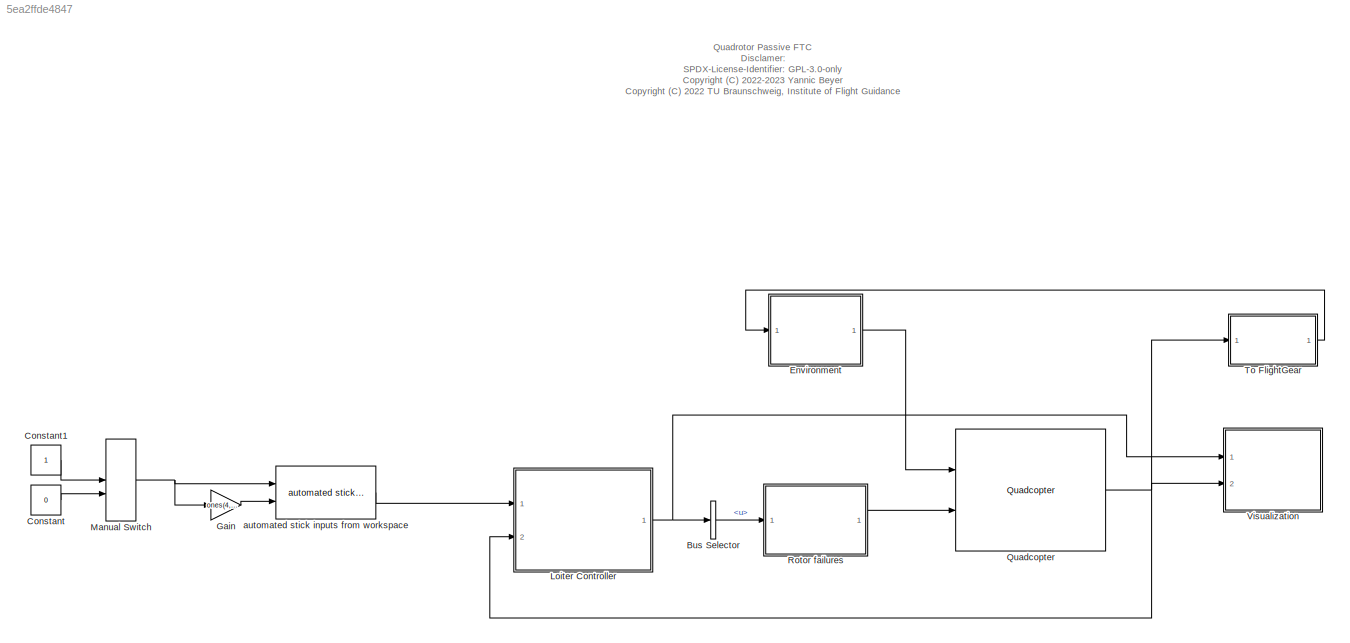
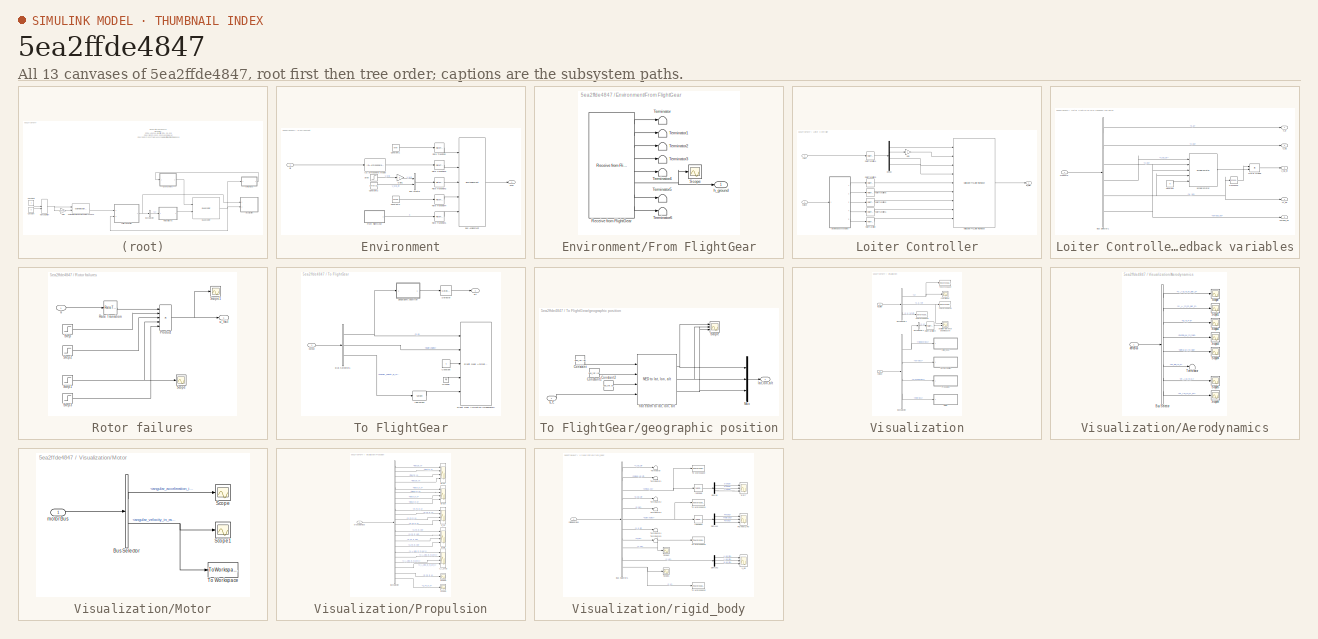
[diagram: thumbnail index - all 13 canvases of the model, root first then tree order]
MODEL slx_5ea2ffde4847
KIND model
CONFIG AbsTol = auto
CONFIG EnableMultiTasking = on
CONFIG FixedStep = sample_time
CONFIG MaxStep = auto
CONFIG MinStep = auto
CONFIG RelTol = 1e-4
CONFIG SampleTimeConstraint = Unconstrained
CONFIG Solver = ode23
CONFIG SolverName = ode23
CONFIG StartTime = 0.0
CONFIG StopTime = 1000
BLOCK [BusSelector] Bus Selector
  OutputAsBus = off
  OutputSignals = inner_loop_indi.u
  Ports = [1, 1]
BLOCK [Constant] Constant
  Value = 0
BLOCK [Constant] Constant1
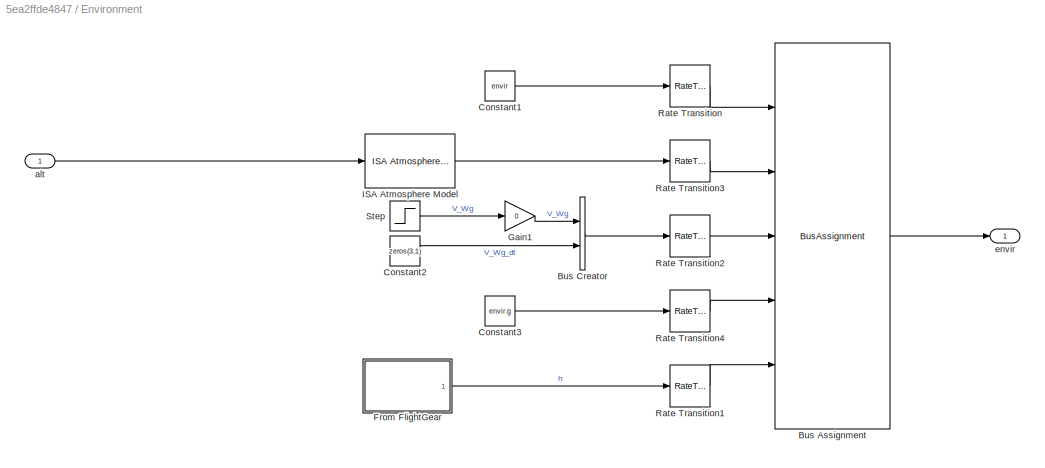
BLOCK [SubSystem] Environment
  Ports = [1, 1]
  RequestExecContextInheritance = off
BLOCK [BusAssignment] Environment/Bus Assignment
  AssignedSignals = atmosphere,wind,g,alt_ground
  Ports = [5, 1]
BLOCK [BusCreator] Environment/Bus Creator
  DisplayOption = bar
  InheritFromInputs = on
  Inputs = 2
  Ports = [2, 1]
BLOCK [Constant] Environment/Constant1
  OutDataTypeStr = Bus: envirBus
  Value = envir
BLOCK [Constant] Environment/Constant2
  Value = zeros(3,1)
BLOCK [Constant] Environment/Constant3
  Value = envir.g
BLOCK [SubSystem] Environment/From FlightGear
  Ports = [0, 1]
  RequestExecContextInheritance = off
BLOCK [Reference] Environment/From FlightGear/Receive from FlightGear  REF=flightgear_visualization_lib/Receive from FlightGear  (lib defined in slx_722f04e3a3fc)
  Ports = [0, 8]
  SourceBlock = flightgear_visualization_lib/Receive from FlightGear
  SourceProductName = LADAC
BLOCK [Scope] Environment/From FlightGear/Scope
  Floating = off
  NumInputPorts = 1
  Ports = [1]
  ScopeSpecificationString = Simulink.scopes.TimeScopeBlockCfg('CurrentConfiguration', extmgr.ConfigurationSet(extmgr.Configuration('Core','General UI',true),extmgr.Configuration('Core','Source UI',true),extmgr.Configuration('Sources','WiredSimulink',true,'DataLoggingVariableName','ScopeData1'),extmgr.Configuration('Visuals','Time Domain',true,'SerializedDisplays',{struct('MinYLimReal','4.70605','MaxYLimReal','6.70605','YLabe...<+1441ch>
BLOCK [Terminator] Environment/From FlightGear/Terminator
BLOCK [Terminator] Environment/From FlightGear/Terminator1
BLOCK [Terminator] Environment/From FlightGear/Terminator2
BLOCK [Terminator] Environment/From FlightGear/Terminator3
BLOCK [Terminator] Environment/From FlightGear/Terminator4
BLOCK [Terminator] Environment/From FlightGear/Terminator5
BLOCK [Terminator] Environment/From FlightGear/Terminator6
BLOCK [Outport] Environment/From FlightGear/h_ground
  IconDisplay = Port number
BLOCK [Gain] Environment/Gain1
  Gain = 0
  OutDataTypeStr = Inherit: Inherit via internal rule
  ParamDataTypeStr = Inherit: Inherit via internal rule
  SaturateOnIntegerOverflow = off
BLOCK [Reference] Environment/ISA Atmosphere Model  REF=atmosphere_lib/ISA Atmosphere Model  (lib defined in slx_398a0eb2fa35)
  Ports = [1, 1]
  SourceBlock = atmosphere_lib/ISA Atmosphere Model
  SourceProductName = LADAC
BLOCK [RateTransition] Environment/Rate Transition
BLOCK [RateTransition] Environment/Rate Transition1
BLOCK [RateTransition] Environment/Rate Transition2
BLOCK [RateTransition] Environment/Rate Transition3
BLOCK [RateTransition] Environment/Rate Transition4
BLOCK [Step] Environment/Step
  After = [0;10;0]
  SampleTime = 0
  Time = 3
BLOCK [Inport] Environment/alt
  IconDisplay = Port number
BLOCK [Outport] Environment/envir
  IconDisplay = Port number
BLOCK [Gain] Gain
  Gain = ones(4,1)
  OutDataTypeStr = Inherit: Inherit via internal rule
  ParamDataTypeStr = Inherit: Inherit via internal rule
  SaturateOnIntegerOverflow = off
BLOCK [SubSystem] Loiter Controller
  Ports = [2, 1]
  RequestExecContextInheritance = off
BLOCK [Demux] Loiter Controller/Demux
  DisplayOption = bar
  Ports = [1, 4]
BLOCK [Gain] Loiter Controller/Gain
  Gain = -1
  OutDataTypeStr = Inherit: Inherit via internal rule
  ParamDataTypeStr = Inherit: Inherit via internal rule
  SaturateOnIntegerOverflow = off
BLOCK [Reference] Loiter Controller/Multicopter FTC Loiter Flight Mode  REF=copterFtc_lib/Multicopter FTC Loiter Flight Mode
  Ports = [9, 1]
  SourceBlock = copterFtc_lib/Multicopter FTC Loiter Flight Mode
BLOCK [RateTransition] Loiter Controller/Rate Transition
BLOCK [RateTransition] Loiter Controller/Rate Transition1
BLOCK [RateTransition] Loiter Controller/Rate Transition2
BLOCK [RateTransition] Loiter Controller/Rate Transition3
BLOCK [RateTransition] Loiter Controller/Rate Transition4
BLOCK [RateTransition] Loiter Controller/Rate Transition6
BLOCK [Outport] Loiter Controller/fm_loiter
  IconDisplay = Port number
  SamplingMode = Sample based
  SignalType = real
BLOCK [Inport] Loiter Controller/output
  IconDisplay = Port number
  Port = 2
BLOCK [SubSystem] Loiter Controller/pick feedback variables
  Ports = [1, 5]
  RequestExecContextInheritance = off
BLOCK [BusSelector] Loiter Controller/pick feedback variables/Bus Selector1
  OutputAsBus = off
  OutputSignals = rigidBodyBus.s_g,rigidBodyBus.V_Kg,rigidBodyBus.V_Kb,rigidBodyBus.V_Kb_dt,rigidBodyBus.M_bg,rigidBodyBus.omega_Kb
  Ports = [1, 6]
BLOCK [Constant] Loiter Controller/pick feedback variables/Constant
  Value = 0
BLOCK [Outport] Loiter Controller/pick feedback variables/M_bg
  IconDisplay = Port number
  Port = 4
BLOCK [Product] Loiter Controller/pick feedback variables/Matrix Multiply
  InputSameDT = off
  Multiplication = Matrix(*)
  OutDataTypeStr = Inherit: Inherit via internal rule
  Ports = [2, 1]
  RndMeth = Floor
  SaturateOnIntegerOverflow = off
BLOCK [Math] Loiter Controller/pick feedback variables/Transpose
  Operator = transpose
  Ports = [1, 1]
BLOCK [Outport] Loiter Controller/pick feedback variables/V_Kg
  IconDisplay = Port number
  Port = 2
BLOCK [Outport] Loiter Controller/pick feedback variables/V_Kg_dt
  IconDisplay = Port number
  Port = 3
BLOCK [Reference] Loiter Controller/pick feedback variables/accelerometer  REF=sensors_lib/accelerometer  (lib defined in mdl_052e9be48c24, mdl_88e42053cf8c, +1 more)
  Ports = [5, 1]
  SourceBlock = sensors_lib/accelerometer
  SourceProductName = LADAC
  SourceType = SubSystem
BLOCK [Inport] Loiter Controller/pick feedback variables/measure
  IconDisplay = Port number
BLOCK [Outport] Loiter Controller/pick feedback variables/omega_Kb
  IconDisplay = Port number
  Port = 5
BLOCK [Outport] Loiter Controller/pick feedback variables/s_g
  IconDisplay = Port number
BLOCK [Inport] Loiter Controller/rpyt
  IconDisplay = Port number
  OutDataTypeStr = double
  SamplingMode = Sample based
  SignalType = real
BLOCK [ManualSwitch] Manual Switch
BLOCK [Reference] Quadcopter  REF=quadcopter_lib/Quadcopter  (lib defined in slx_bd6b051694d1)
  Ports = [2, 1]
  SourceBlock = quadcopter_lib/Quadcopter
  SourceProductName = LADAC
BLOCK [SubSystem] Rotor failures
  Ports = [1, 1]
  RequestExecContextInheritance = off
BLOCK [Product] Rotor failures/Product
  InputSameDT = off
  Inputs = 5
  OutDataTypeStr = Inherit: Inherit via internal rule
  Ports = [5, 1]
  RndMeth = Floor
  SaturateOnIntegerOverflow = off
BLOCK [RateTransition] Rotor failures/Rate Transition
BLOCK [Scope] Rotor failures/Scope
  Floating = off
  NumInputPorts = 1
  Ports = [1]
  ScopeSpecificationString = Simulink.scopes.TimeScopeBlockCfg('CurrentConfiguration', extmgr.ConfigurationSet(extmgr.Configuration('Core','General UI',true),extmgr.Configuration('Core','Source UI',true),extmgr.Configuration('Sources','WiredSimulink',true,'DataLoggingVariableName','ScopeData2'),extmgr.Configuration('Visuals','Time Domain',true,'SerializedDisplays',{struct('MinYLimReal','-0.125','MaxYLimReal','1.125','YLabelRe...<+1440ch>
BLOCK [Scope] Rotor failures/Scope1
  Floating = off
  NumInputPorts = 1
  Ports = [1]
  ScopeSpecificationString = Simulink.scopes.TimeScopeBlockCfg('CurrentConfiguration', extmgr.ConfigurationSet(extmgr.Configuration('Core','General UI',true),extmgr.Configuration('Core','Source UI',true),extmgr.Configuration('Sources','WiredSimulink',true,'DataLoggingVariableName','ScopeData1'),extmgr.Configuration('Visuals','Time Domain',true,'SerializedDisplays',{struct('MinYLimReal','-0.07201','MaxYLimReal','0.64813','YLab...<+1575ch>
BLOCK [Step] Rotor failures/Step
  After = [0;1;1;1]
  Before = [1;1;1;1]
  SampleTime = 0
  Time = failure_time_mot_1
BLOCK [Step] Rotor failures/Step1
  After = [1;1;0;1]
  Before = [1;1;1;1]
  SampleTime = 0
  Time = failure_time_mot_3
BLOCK [Step] Rotor failures/Step2
  After = [1;0;1;1]
  Before = [1;1;1;1]
  SampleTime = 0
  Time = failure_time_mot_2
BLOCK [Step] Rotor failures/Step3
  After = [1;1;1;0]
  Before = [1;1;1;1]
  SampleTime = 0
  Time = failure_time_mot_4
BLOCK [Inport] Rotor failures/u
  IconDisplay = Port number
BLOCK [Outport] Rotor failures/u_fail
  IconDisplay = Port number
BLOCK [SubSystem] To FlightGear
  Ports = [1, 1]
  RequestExecContextInheritance = off
BLOCK [BusSelector] To FlightGear/Bus Selector1
  OutputAsBus = off
  OutputSignals = rigidBodyBus.s_g,rigidBodyBus.EulerAngles,motorBus.angular_velocity_in_rad_per_s
  Ports = [1, 3]
BLOCK [Constant] To FlightGear/Constant
  Value = 4
BLOCK [Reference] To FlightGear/Flight Gear Animation (Quadcopter)  REF=flightgear_visualization_lib/Flight Gear Animation (Quadcopter)  (lib defined in slx_722f04e3a3fc)
  Ports = [5]
  SourceBlock = flightgear_visualization_lib/Flight Gear Animation (Quadcopter)
  SourceProductName = LADAC
BLOCK [Ground] To FlightGear/Ground
BLOCK [Selector] To FlightGear/Selector
  IndexOptions = Index vector (dialog)
  Indices = 3
  InputPortWidth = 3
  OutputSizes = 1
  Ports = [1, 1]
BLOCK [Outport] To FlightGear/alt
  IconDisplay = Port number
BLOCK [SubSystem] To FlightGear/geographic position
  Ports = [1, 1]
  RequestExecContextInheritance = off
BLOCK [Constant] To FlightGear/geographic position/Constant
  Value = pos_ref.lat
BLOCK [Constant] To FlightGear/geographic position/Constant1
  Value = pos_ref.lon
BLOCK [Constant] To FlightGear/geographic position/Constant2
  Value = pos_ref.alt
BLOCK [Mux] To FlightGear/geographic position/Mux
  DisplayOption = bar
  Inputs = 3
  Ports = [3, 1]
BLOCK [Scope] To FlightGear/geographic position/Scope
  Floating = off
  NumInputPorts = 3
  Ports = [3]
  ScopeSpecificationString = Simulink.scopes.TimeScopeBlockCfg('CurrentConfiguration', extmgr.ConfigurationSet(extmgr.Configuration('Core','General UI',true),extmgr.Configuration('Core','Source UI',true),extmgr.Configuration('Sources','WiredSimulink',true,'DataLoggingVariableName','ScopeData6'),extmgr.Configuration('Visuals','Time Domain',true,'SerializedDisplays',{struct('MinYLimReal','4.04731','MaxYLimReal','63.57425','YLab...<+1508ch>
BLOCK [Reference] To FlightGear/geographic position/flat earth to lat, lon, alt  REF=axes_transformation_lib/NED to lat, lon, alt  (lib defined in slx_69e2413c78c0)
  Ports = [4, 3]
  SourceBlock = axes_transformation_lib/NED to lat, lon, alt
  SourceProductName = LADAC
  SourceType = SubSystem
BLOCK [Outport] To FlightGear/geographic position/lat,lon,alt
  IconDisplay = Port number
BLOCK [Inport] To FlightGear/geographic position/s_E
  IconDisplay = Port number
BLOCK [Inport] To FlightGear/output
  IconDisplay = Port number
BLOCK [Reference] To FlightGear/rad//s2rpm  REF=unit_conversions_lib/rad//s2rpm  (lib defined in slx_ae2855d4d91e)
  Ports = [1, 1]
  SourceBlock = unit_conversions_lib/rad//s2rpm
  SourceProductName = LADAC
BLOCK [SubSystem] Visualization
  Ports = [2]
  RequestExecContextInheritance = off
BLOCK [SubSystem] Visualization/Aerodynamics
  Ports = [1]
  RequestExecContextInheritance = off
BLOCK [BusSelector] Visualization/Aerodynamics/Bus Selector
  OutputAsBus = off
  OutputSignals = V_Ab_in_m_per_s,V_A_in_m_per_s,q_in_Pa,angles.alpha_M_in_rad,angles.beta_M_in_rad,M_ba_in_1,R_Ab_in_N,Q_Ab_in_N_m
  Ports = [1, 8]
BLOCK [Scope] Visualization/Aerodynamics/Scope
  Floating = off
  NumInputPorts = 1
  Ports = [1]
  ScopeSpecificationString = Simulink.scopes.TimeScopeBlockCfg('CurrentConfiguration', extmgr.ConfigurationSet(extmgr.Configuration('Core','General UI',true),extmgr.Configuration('Core','Source UI',true),extmgr.Configuration('Sources','WiredSimulink',true,'DataLoggingVariableName','ScopeData1'),extmgr.Configuration('Visuals','Time Domain',true),extmgr.Configuration('Tools','Plot Navigation',true),extmgr.Configuration('Tools',...<+40ch>
BLOCK [Scope] Visualization/Aerodynamics/Scope1
  Floating = off
  NumInputPorts = 1
  Ports = [1]
  ScopeSpecificationString = Simulink.scopes.TimeScopeBlockCfg('CurrentConfiguration', extmgr.ConfigurationSet(extmgr.Configuration('Core','General UI',true),extmgr.Configuration('Core','Source UI',true),extmgr.Configuration('Sources','WiredSimulink',true,'DataLoggingVariableName','ScopeData2'),extmgr.Configuration('Visuals','Time Domain',true,'SerializedDisplays',{struct('MinYLimReal','-0.81438','MaxYLimReal','7.32941','YLab...<+1419ch>
BLOCK [Scope] Visualization/Aerodynamics/Scope2
  Floating = off
  NumInputPorts = 1
  Ports = [1]
  ScopeSpecificationString = Simulink.scopes.TimeScopeBlockCfg('CurrentConfiguration', extmgr.ConfigurationSet(extmgr.Configuration('Core','General UI',true),extmgr.Configuration('Core','Source UI',true),extmgr.Configuration('Sources','WiredSimulink',true,'DataLoggingVariableName','ScopeData3'),extmgr.Configuration('Visuals','Time Domain',true,'SerializedDisplays',{struct('MinYLimReal','-7.65547','MaxYLimReal','68.89921','YLa...<+1427ch>
BLOCK [Scope] Visualization/Aerodynamics/Scope3
  Floating = off
  NumInputPorts = 1
  Ports = [1]
  ScopeSpecificationString = Simulink.scopes.TimeScopeBlockCfg('CurrentConfiguration', extmgr.ConfigurationSet(extmgr.Configuration('Core','General UI',true),extmgr.Configuration('Core','Source UI',true),extmgr.Configuration('Sources','WiredSimulink',true,'DataLoggingVariableName','ScopeData4'),extmgr.Configuration('Visuals','Time Domain',true,'SerializedDisplays',{struct('MinYLimReal','-0.08528','MaxYLimReal','-0.00577','YLa...<+1421ch>
BLOCK [Scope] Visualization/Aerodynamics/Scope4
  Floating = off
  NumInputPorts = 1
  Ports = [1]
  ScopeSpecificationString = Simulink.scopes.TimeScopeBlockCfg('CurrentConfiguration', extmgr.ConfigurationSet(extmgr.Configuration('Core','General UI',true),extmgr.Configuration('Core','Source UI',true),extmgr.Configuration('Sources','WiredSimulink',true,'DataLoggingVariableName','ScopeData5'),extmgr.Configuration('Visuals','Time Domain',true,'SerializedDisplays',{struct('MinYLimReal','-3.92698','MaxYLimReal','3.92696','YLab...<+1418ch>
BLOCK [Scope] Visualization/Aerodynamics/Scope5
  Floating = off
  NumInputPorts = 1
  Ports = [1]
  ScopeSpecificationString = Simulink.scopes.TimeScopeBlockCfg('CurrentConfiguration', extmgr.ConfigurationSet(extmgr.Configuration('Core','General UI',true),extmgr.Configuration('Core','Source UI',true),extmgr.Configuration('Sources','WiredSimulink',true,'DataLoggingVariableName','ScopeData6'),extmgr.Configuration('Visuals','Time Domain',true,'SerializedDisplays',{struct('MinYLimReal','-0.98924','MaxYLimReal','1.67644','YLab...<+1478ch>
BLOCK [Scope] Visualization/Aerodynamics/Scope6
  Floating = off
  NumInputPorts = 1
  Ports = [1]
  ScopeSpecificationString = Simulink.scopes.TimeScopeBlockCfg('CurrentConfiguration', extmgr.ConfigurationSet(extmgr.Configuration('Core','General UI',true),extmgr.Configuration('Core','Source UI',true),extmgr.Configuration('Sources','WiredSimulink',true,'DataLoggingVariableName','ScopeData7'),extmgr.Configuration('Visuals','Time Domain',true,'SerializedDisplays',{struct('MinYLimReal','-0.00019','MaxYLimReal','0.00002','YLab...<+1454ch>
BLOCK [Terminator] Visualization/Aerodynamics/Terminator
BLOCK [Inport] Visualization/Aerodynamics/aeroBus
  IconDisplay = Port number
BLOCK [BusSelector] Visualization/Bus Selector
  OutputAsBus = off
  OutputSignals = rigidBodyBus,aeroBus,propulsionBus,motorBus
  Ports = [1, 4]
BLOCK [BusSelector] Visualization/Bus Selector1
  OutputAsBus = off
  OutputSignals = inner_loop_indi.u,pos_cntrl.reference.s_g_ref,pos_cntrl.reference.s_g_ref_dt
  Ports = [1, 3]
BLOCK [BusSelector] Visualization/Bus Selector2
  OutputAsBus = off
  OutputSignals = s_g
  Ports = [1, 1]
BLOCK [SubSystem] Visualization/Motor
  Ports = [1]
  RequestExecContextInheritance = off
BLOCK [BusSelector] Visualization/Motor/Bus Selector
  OutputAsBus = off
  OutputSignals = angular_acceleration_in_rad_per_square_s,angular_velocity_in_rad_per_s
  Ports = [1, 2]
BLOCK [Scope] Visualization/Motor/Scope
  Floating = off
  NumInputPorts = 1
  Ports = [1]
  ScopeSpecificationString = Simulink.scopes.TimeScopeBlockCfg('CurrentConfiguration', extmgr.ConfigurationSet(extmgr.Configuration('Core','General UI',true),extmgr.Configuration('Core','Source UI',true),extmgr.Configuration('Sources','WiredSimulink',true,'DataLoggingVariableName','ScopeData15'),extmgr.Configuration('Visuals','Time Domain',true,'SerializedDisplays',{struct('MinYLimReal','-14601.27633','MaxYLimReal','1999.6683...<+1596ch>
BLOCK [Scope] Visualization/Motor/Scope1
  Floating = off
  NumInputPorts = 1
  Ports = [1]
  ScopeSpecificationString = Simulink.scopes.TimeScopeBlockCfg('CurrentConfiguration', extmgr.ConfigurationSet(extmgr.Configuration('Core','General UI',true),extmgr.Configuration('Core','Source UI',true),extmgr.Configuration('Sources','WiredSimulink',true,'DataLoggingVariableName','motor_speed','DataLoggingSaveFormat','StructureWithTime'),extmgr.Configuration('Visuals','Time Domain',true,'SerializedDisplays',{struct('MinYLimR...<+1761ch>
BLOCK [ToWorkspace] Visualization/Motor/To Workspace
  FixptAsFi = on
  MaxDataPoints = inf
  Ports = [1]
  SampleTime = -1
  Save2DSignal = 3-D array (concatenate along third dimension)
  SaveFormat = Timeseries
  VariableName = motor_speed
BLOCK [Inport] Visualization/Motor/motorBus
  IconDisplay = Port number
BLOCK [SubSystem] Visualization/Propulsion
  Ports = [1]
  RequestExecContextInheritance = off
BLOCK [BusSelector] Visualization/Propulsion/Bus Selector
  OutputAsBus = off
  OutputSignals = propeller_1.thrust_in_N,propeller_2.thrust_in_N,propeller_3.thrust_in_N,propeller_4.thrust_in_N,propeller_1.torque_in_N,propeller_2.torque_in_N,propeller_3.torque_in_N,propeller_4.torque_in_N,propeller_1.R_Fb_in_N,propeller_2.R_Fb_in_N,propeller_3.R_Fb_in_N,propeller_4.R_Fb_in_N,propeller_1.Q_Fb_in_Nm,propeller_2.Q_Fb_in_Nm,propeller_3.Q_Fb_in_Nm,propeller_4.Q_Fb_in_Nm,propeller_1.V_A_prop_in_m_pe...<+119ch>
  Ports = [1, 22]
BLOCK [Scope] Visualization/Propulsion/Q_Fb
  Floating = off
  NumInputPorts = 4
  Ports = [4]
  ScopeSpecificationString = Simulink.scopes.TimeScopeBlockCfg('CurrentConfiguration', extmgr.ConfigurationSet(extmgr.Configuration('Core','General UI',true),extmgr.Configuration('Core','Source UI',true),extmgr.Configuration('Sources','WiredSimulink',true,'DataLoggingVariableName','ScopeData11'),extmgr.Configuration('Visuals','Time Domain',true,'SerializedDisplays',{struct('MinYLimReal','-0.22601','MaxYLimReal','-0.19277','YL...<+1564ch>
BLOCK [Scope] Visualization/Propulsion/R_Fb
  Floating = off
  NumInputPorts = 4
  Ports = [4]
  ScopeSpecificationString = Simulink.scopes.TimeScopeBlockCfg('CurrentConfiguration', extmgr.ConfigurationSet(extmgr.Configuration('Core','General UI',true),extmgr.Configuration('Core','Source UI',true),extmgr.Configuration('Sources','WiredSimulink',true,'DataLoggingVariableName','ScopeData10'),extmgr.Configuration('Visuals','Time Domain',true,'SerializedDisplays',{struct('MinYLimReal','-8.5339','MaxYLimReal','0.94821','YLab...<+1626ch>
BLOCK [Scope] Visualization/Propulsion/Scope5
  Floating = off
  NumInputPorts = 1
  Ports = [1]
  ScopeSpecificationString = Simulink.scopes.TimeScopeBlockCfg('CurrentConfiguration', extmgr.ConfigurationSet(extmgr.Configuration('Core','General UI',true),extmgr.Configuration('Core','Source UI',true),extmgr.Configuration('Sources','WiredSimulink',true,'DataLoggingVariableName','ScopeData13'),extmgr.Configuration('Visuals','Time Domain',true,'SerializedDisplays',{struct('MinYLimReal','-20.94875','MaxYLimReal','2.32764','YL...<+1502ch>
BLOCK [Scope] Visualization/Propulsion/Scope6
  Floating = off
  NumInputPorts = 1
  Ports = [1]
  ScopeSpecificationString = Simulink.scopes.TimeScopeBlockCfg('CurrentConfiguration', extmgr.ConfigurationSet(extmgr.Configuration('Core','General UI',true),extmgr.Configuration('Core','Source UI',true),extmgr.Configuration('Sources','WiredSimulink',true,'DataLoggingVariableName','ScopeData14'),extmgr.Configuration('Visuals','Time Domain',true,'SerializedDisplays',{struct('MinYLimReal','-0.90403','MaxYLimReal','-0.77107','YL...<+1407ch>
BLOCK [Scope] Visualization/Propulsion/V_A_prop
  Floating = off
  NumInputPorts = 4
  Ports = [4]
  ScopeSpecificationString = Simulink.scopes.TimeScopeBlockCfg('CurrentConfiguration', extmgr.ConfigurationSet(extmgr.Configuration('Core','General UI',true),extmgr.Configuration('Core','Source UI',true),extmgr.Configuration('Sources','WiredSimulink',true,'DataLoggingVariableName','ScopeData12'),extmgr.Configuration('Visuals','Time Domain',true,'SerializedDisplays',{struct('MinYLimReal','-0.02599','MaxYLimReal','0.06439','YLa...<+1693ch>
BLOCK [Inport] Visualization/Propulsion/propulsionBus
  IconDisplay = Port number
BLOCK [Scope] Visualization/Propulsion/thrust
  Floating = off
  NumInputPorts = 4
  Ports = [4]
  ScopeSpecificationString = Simulink.scopes.TimeScopeBlockCfg('CurrentConfiguration', extmgr.ConfigurationSet(extmgr.Configuration('Core','General UI',true),extmgr.Configuration('Core','Source UI',true),extmgr.Configuration('Sources','WiredSimulink',true,'DataLoggingVariableName','ScopeData8'),extmgr.Configuration('Visuals','Time Domain',true,'SerializedDisplays',{struct('MinYLimReal','-0.01333','MaxYLimReal','0.11998','YLab...<+1420ch>
BLOCK [Scope] Visualization/Propulsion/torque
  Floating = off
  NumInputPorts = 4
  Ports = [4]
  ScopeSpecificationString = Simulink.scopes.TimeScopeBlockCfg('CurrentConfiguration', extmgr.ConfigurationSet(extmgr.Configuration('Core','General UI',true),extmgr.Configuration('Core','Source UI',true),extmgr.Configuration('Sources','WiredSimulink',true,'DataLoggingVariableName','ScopeData9'),extmgr.Configuration('Visuals','Time Domain',true,'SerializedDisplays',{struct('MinYLimReal','-0.00039','MaxYLimReal','0.00353','YLab...<+1445ch>
BLOCK [RateTransition] Visualization/Rate Transition4
BLOCK [ToWorkspace] Visualization/To Workspace
  FixptAsFi = on
  MaxDataPoints = inf
  Ports = [1]
  SampleTime = -1
  Save2DSignal = 3-D array (concatenate along third dimension)
  SaveFormat = Timeseries
  VariableName = input
BLOCK [ToWorkspace] Visualization/To Workspace1
  FixptAsFi = on
  MaxDataPoints = inf
  Ports = [1]
  SampleTime = -1
  Save2DSignal = 3-D array (concatenate along third dimension)
  SaveFormat = Timeseries
  VariableName = s_g_ref
BLOCK [ToWorkspace] Visualization/To Workspace2
  FixptAsFi = on
  MaxDataPoints = inf
  Ports = [1]
  SampleTime = -1
  Save2DSignal = 3-D array (concatenate along third dimension)
  SaveFormat = Timeseries
  VariableName = V_Kg_ref
BLOCK [Scope] Visualization/control input
  Floating = off
  NumInputPorts = 1
  Ports = [1]
  ScopeSpecificationString = Simulink.scopes.TimeScopeBlockCfg('CurrentConfiguration', extmgr.ConfigurationSet(extmgr.Configuration('Core','General UI',true),extmgr.Configuration('Core','Source UI',true),extmgr.Configuration('Sources','WiredSimulink',true,'DataLoggingVariableName','input','DataLoggingSaveFormat','StructureWithTime'),extmgr.Configuration('Visuals','Time Domain',true,'SerializedDisplays',{struct('MinYLimReal','...<+1637ch>
BLOCK [Inport] Visualization/fm_loiter
  IconDisplay = Port number
BLOCK [Inport] Visualization/output
  IconDisplay = Port number
  Port = 2
BLOCK [Scope] Visualization/position reference and measure
  Floating = off
  NumInputPorts = 2
  Ports = [2]
  ScopeSpecificationString = Simulink.scopes.TimeScopeBlockCfg('CurrentConfiguration', extmgr.ConfigurationSet(extmgr.Configuration('Core','General UI',true),extmgr.Configuration('Core','Source UI',true),extmgr.Configuration('Sources','WiredSimulink',true,'DataLoggingVariableName','pos','DataLogging',true,'DataLoggingSaveFormat','StructureWithTime'),extmgr.Configuration('Visuals','Time Domain',true,'SerializedDisplays',{struc...<+1716ch>
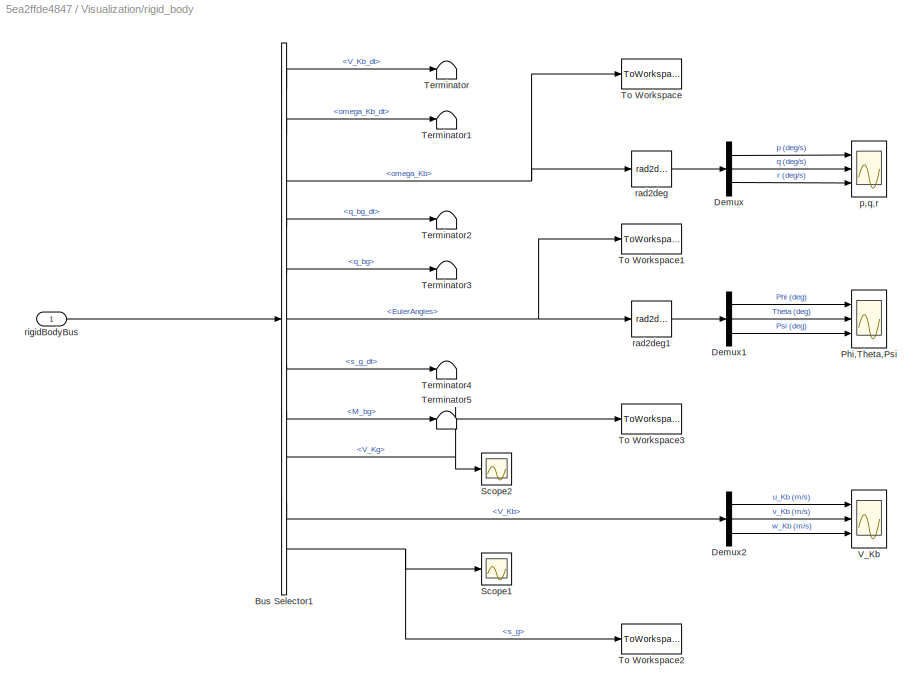
BLOCK [SubSystem] Visualization/rigid_body
  Ports = [1]
  RequestExecContextInheritance = off
BLOCK [BusSelector] Visualization/rigid_body/Bus Selector1
  OutputAsBus = off
  OutputSignals = V_Kb_dt,omega_Kb_dt,omega_Kb,q_bg_dt,q_bg,EulerAngles,s_g_dt,M_bg,V_Kg,V_Kb,s_g
  Ports = [1, 11]
BLOCK [Demux] Visualization/rigid_body/Demux
  DisplayOption = bar
  Outputs = 3
  Ports = [1, 3]
BLOCK [Demux] Visualization/rigid_body/Demux1
  DisplayOption = bar
  Outputs = 3
  Ports = [1, 3]
BLOCK [Demux] Visualization/rigid_body/Demux2
  DisplayOption = bar
  Outputs = 3
  Ports = [1, 3]
BLOCK [Scope] Visualization/rigid_body/Phi,Theta,Psi
  Floating = off
  NumInputPorts = 3
  Ports = [3]
  ScopeSpecificationString = Simulink.scopes.TimeScopeBlockCfg('CurrentConfiguration', extmgr.ConfigurationSet(extmgr.Configuration('Core','General UI',true),extmgr.Configuration('Core','Source UI',true),extmgr.Configuration('Sources','WiredSimulink',true,'DataLoggingVariableName','ScopeAngles','DataLoggingSaveFormat','StructureWithTime'),extmgr.Configuration('Visuals','Time Domain',true,'SerializedDisplays',{struct('MinYLimR...<+1576ch>
BLOCK [Scope] Visualization/rigid_body/Scope1
  Floating = off
  NumInputPorts = 1
  Ports = [1]
  ScopeSpecificationString = Simulink.scopes.TimeScopeBlockCfg('CurrentConfiguration', extmgr.ConfigurationSet(extmgr.Configuration('Core','General UI',true),extmgr.Configuration('Core','Source UI',true),extmgr.Configuration('Sources','WiredSimulink',true,'DataLoggingVariableName','s_g','DataLoggingSaveFormat','StructureWithTime'),extmgr.Configuration('Visuals','Time Domain',true,'SerializedDisplays',{struct('MinYLimReal','-1...<+1551ch>
BLOCK [Scope] Visualization/rigid_body/Scope2
  Floating = off
  NumInputPorts = 1
  Ports = [1]
  ScopeSpecificationString = Simulink.scopes.TimeScopeBlockCfg('CurrentConfiguration', extmgr.ConfigurationSet(extmgr.Configuration('Core','General UI',true),extmgr.Configuration('Core','Source UI',true),extmgr.Configuration('Sources','WiredSimulink',true,'DataLoggingVariableName','ScopeData1'),extmgr.Configuration('Visuals','Time Domain',true,'SerializedDisplays',{struct('MinYLimReal','-6.91604','MaxYLimReal','6.91222','YLab...<+1494ch>
BLOCK [Terminator] Visualization/rigid_body/Terminator
BLOCK [Terminator] Visualization/rigid_body/Terminator1
BLOCK [Terminator] Visualization/rigid_body/Terminator2
BLOCK [Terminator] Visualization/rigid_body/Terminator3
BLOCK [Terminator] Visualization/rigid_body/Terminator4
BLOCK [Terminator] Visualization/rigid_body/Terminator5
BLOCK [ToWorkspace] Visualization/rigid_body/To Workspace
  FixptAsFi = on
  MaxDataPoints = inf
  Ports = [1]
  SampleTime = -1
  Save2DSignal = 3-D array (concatenate along third dimension)
  SaveFormat = Timeseries
  VariableName = omega_Kb
BLOCK [ToWorkspace] Visualization/rigid_body/To Workspace1
  FixptAsFi = on
  MaxDataPoints = inf
  Ports = [1]
  SampleTime = -1
  Save2DSignal = 3-D array (concatenate along third dimension)
  SaveFormat = Timeseries
  VariableName = Euler_angles
BLOCK [ToWorkspace] Visualization/rigid_body/To Workspace2
  FixptAsFi = on
  MaxDataPoints = inf
  Ports = [1]
  SampleTime = -1
  Save2DSignal = 3-D array (concatenate along third dimension)
  SaveFormat = Timeseries
  VariableName = s_g
BLOCK [ToWorkspace] Visualization/rigid_body/To Workspace3
  FixptAsFi = on
  MaxDataPoints = inf
  Ports = [1]
  SampleTime = -1
  Save2DSignal = 3-D array (concatenate along third dimension)
  SaveFormat = Timeseries
  VariableName = V_Kg
BLOCK [Scope] Visualization/rigid_body/V_Kb
  Floating = off
  NumInputPorts = 3
  Ports = [3]
  ScopeSpecificationString = Simulink.scopes.TimeScopeBlockCfg('CurrentConfiguration', extmgr.ConfigurationSet(extmgr.Configuration('Core','General UI',true),extmgr.Configuration('Core','Source UI',true),extmgr.Configuration('Sources','WiredSimulink',true,'DataLoggingVariableName','ScopeV','DataLoggingSaveFormat','StructureWithTime'),extmgr.Configuration('Visuals','Time Domain',true,'SerializedDisplays',{struct('MinYLimReal',...<+1508ch>
BLOCK [Scope] Visualization/rigid_body/p,q,r
  Floating = off
  NumInputPorts = 3
  Ports = [3]
  ScopeSpecificationString = Simulink.scopes.TimeScopeBlockCfg('CurrentConfiguration', extmgr.ConfigurationSet(extmgr.Configuration('Core','General UI',true),extmgr.Configuration('Core','Source UI',true),extmgr.Configuration('Sources','WiredSimulink',true,'DataLoggingVariableName','ScopeRates','DataLoggingSaveFormat','StructureWithTime'),extmgr.Configuration('Visuals','Time Domain',true,'SerializedDisplays',{struct('MinYLimRe...<+1605ch>
BLOCK [Reference] Visualization/rigid_body/rad2deg  REF=unit_conversions_lib/rad2deg  (lib defined in slx_ae2855d4d91e)
  Ports = [1, 1]
  SourceBlock = unit_conversions_lib/rad2deg
  SourceProductName = LADAC
BLOCK [Reference] Visualization/rigid_body/rad2deg1  REF=unit_conversions_lib/rad2deg  (lib defined in slx_ae2855d4d91e)
  Ports = [1, 1]
  SourceBlock = unit_conversions_lib/rad2deg
  SourceProductName = LADAC
BLOCK [Inport] Visualization/rigid_body/rigidBodyBus
  IconDisplay = Port number
BLOCK [Reference] automated stick inputs from workspace  REF=copterFtc_lib/automated stick inputs from workspace
  Ports = [2, 1]
  SourceBlock = copterFtc_lib/automated stick inputs from workspace
ANNOTATION (root): Quadrotor Passive FTC Disclamer: SPDX-License-Identifier: GPL-3.0-only <copyright redacted>
LINE Bus Selector:1 -> Rotor failures:1
LINE Constant1:1 -> Manual Switch:1
LINE Constant:1 -> Manual Switch:2
LINE Environment/Bus Assignment:1 -> Environment/envir:1
LINE Environment/Bus Creator:1 -> Environment/Rate Transition2:1
LINE Environment/Constant1:1 -> Environment/Rate Transition:1
LINE Environment/Constant2:1 -> Environment/Bus Creator:2
LINE Environment/Constant3:1 -> Environment/Rate Transition4:1
LINE Environment/From FlightGear/Receive from FlightGear:1 -> Environment/From FlightGear/Terminator:1
LINE Environment/From FlightGear/Receive from FlightGear:2 -> Environment/From FlightGear/Terminator1:1
LINE Environment/From FlightGear/Receive from FlightGear:3 -> Environment/From FlightGear/Terminator2:1
LINE Environment/From FlightGear/Receive from FlightGear:4 -> Environment/From FlightGear/Terminator3:1
LINE Environment/From FlightGear/Receive from FlightGear:5 -> Environment/From FlightGear/Terminator4:1
NET Environment/From FlightGear/Receive from FlightGear:6 -> Environment/From FlightGear/Scope:1, Environment/From FlightGear/h_ground:1
LINE Environment/From FlightGear/Receive from FlightGear:7 -> Environment/From FlightGear/Terminator5:1
LINE Environment/From FlightGear/Receive from FlightGear:8 -> Environment/From FlightGear/Terminator6:1
LINE Environment/From FlightGear:1 -> Environment/Rate Transition1:1
LINE Environment/Gain1:1 -> Environment/Bus Creator:1
LINE Environment/ISA Atmosphere Model:1 -> Environment/Rate Transition3:1
LINE Environment/Rate Transition1:1 -> Environment/Bus Assignment:5
LINE Environment/Rate Transition2:1 -> Environment/Bus Assignment:3
LINE Environment/Rate Transition3:1 -> Environment/Bus Assignment:2
LINE Environment/Rate Transition4:1 -> Environment/Bus Assignment:4
LINE Environment/Rate Transition:1 -> Environment/Bus Assignment:1
LINE Environment/Step:1 -> Environment/Gain1:1
LINE Environment/alt:1 -> Environment/ISA Atmosphere Model:1
LINE Environment:1 -> Quadcopter:1
LINE Gain:1 -> automated stick inputs from workspace:2
LINE Loiter Controller/Demux:1 -> Loiter Controller/Multicopter FTC Loiter Flight Mode:1
LINE Loiter Controller/Demux:2 -> Loiter Controller/Gain:1
LINE Loiter Controller/Demux:3 -> Loiter Controller/Multicopter FTC Loiter Flight Mode:3
LINE Loiter Controller/Demux:4 -> Loiter Controller/Multicopter FTC Loiter Flight Mode:4
LINE Loiter Controller/Gain:1 -> Loiter Controller/Multicopter FTC Loiter Flight Mode:2
LINE Loiter Controller/Multicopter FTC Loiter Flight Mode:1 -> Loiter Controller/fm_loiter:1
LINE Loiter Controller/Rate Transition1:1 -> Loiter Controller/Multicopter FTC Loiter Flight Mode:8
LINE Loiter Controller/Rate Transition2:1 -> Loiter Controller/Multicopter FTC Loiter Flight Mode:7
LINE Loiter Controller/Rate Transition3:1 -> Loiter Controller/Multicopter FTC Loiter Flight Mode:5
LINE Loiter Controller/Rate Transition4:1 -> Loiter Controller/Demux:1
LINE Loiter Controller/Rate Transition6:1 -> Loiter Controller/Multicopter FTC Loiter Flight Mode:6
LINE Loiter Controller/Rate Transition:1 -> Loiter Controller/Multicopter FTC Loiter Flight Mode:9
LINE Loiter Controller/output:1 -> Loiter Controller/pick feedback variables:1
LINE Loiter Controller/pick feedback variables/Bus Selector1:1 -> Loiter Controller/pick feedback variables/s_g:1
LINE Loiter Controller/pick feedback variables/Bus Selector1:2 -> Loiter Controller/pick feedback variables/V_Kg:1
LINE Loiter Controller/pick feedback variables/Bus Selector1:3 -> Loiter Controller/pick feedback variables/accelerometer:2
LINE Loiter Controller/pick feedback variables/Bus Selector1:4 -> Loiter Controller/pick feedback variables/accelerometer:1
NET Loiter Controller/pick feedback variables/Bus Selector1:5 -> Loiter Controller/pick feedback variables/M_bg:1, Loiter Controller/pick feedback variables/Transpose:1, Loiter Controller/pick feedback variables/accelerometer:4
NET Loiter Controller/pick feedback variables/Bus Selector1:6 -> Loiter Controller/pick feedback variables/accelerometer:3, Loiter Controller/pick feedback variables/omega_Kb:1
LINE Loiter Controller/pick feedback variables/Constant:1 -> Loiter Controller/pick feedback variables/accelerometer:5
LINE Loiter Controller/pick feedback variables/Matrix Multiply:1 -> Loiter Controller/pick feedback variables/V_Kg_dt:1
LINE Loiter Controller/pick feedback variables/Transpose:1 -> Loiter Controller/pick feedback variables/Matrix Multiply:1
LINE Loiter Controller/pick feedback variables/accelerometer:1 -> Loiter Controller/pick feedback variables/Matrix Multiply:2
LINE Loiter Controller/pick feedback variables/measure:1 -> Loiter Controller/pick feedback variables/Bus Selector1:1
LINE Loiter Controller/pick feedback variables:1 -> Loiter Controller/Rate Transition3:1
LINE Loiter Controller/pick feedback variables:2 -> Loiter Controller/Rate Transition6:1
LINE Loiter Controller/pick feedback variables:3 -> Loiter Controller/Rate Transition2:1
LINE Loiter Controller/pick feedback variables:4 -> Loiter Controller/Rate Transition1:1
LINE Loiter Controller/pick feedback variables:5 -> Loiter Controller/Rate Transition:1
LINE Loiter Controller/rpyt:1 -> Loiter Controller/Rate Transition4:1
NET Loiter Controller:1 -> Bus Selector:1, Visualization:1
NET Manual Switch:1 -> Gain:1, automated stick inputs from workspace:1
NET Quadcopter:1 -> Loiter Controller:2, To FlightGear:1, Visualization:2
NET Rotor failures/Product:1 -> Rotor failures/Scope1:1, Rotor failures/u_fail:1
LINE Rotor failures/Rate Transition:1 -> Rotor failures/Product:1
NET Rotor failures/Step1:1 -> Rotor failures/Product:4, Rotor failures/Scope:1
LINE Rotor failures/Step2:1 -> Rotor failures/Product:3
LINE Rotor failures/Step3:1 -> Rotor failures/Product:5
LINE Rotor failures/Step:1 -> Rotor failures/Product:2
LINE Rotor failures/u:1 -> Rotor failures/Rate Transition:1
LINE Rotor failures:1 -> Quadcopter:2
NET To FlightGear/Bus Selector1:1 -> To FlightGear/Flight Gear Animation (Quadcopter):1, To FlightGear/geographic position:1
LINE To FlightGear/Bus Selector1:2 -> To FlightGear/Flight Gear Animation (Quadcopter):2
LINE To FlightGear/Bus Selector1:3 -> To FlightGear/rad//s2rpm:1
LINE To FlightGear/Constant:1 -> To FlightGear/Flight Gear Animation (Quadcopter):3
LINE To FlightGear/Ground:1 -> To FlightGear/Flight Gear Animation (Quadcopter):4
LINE To FlightGear/Selector:1 -> To FlightGear/alt:1
LINE To FlightGear/geographic position/Constant1:1 -> To FlightGear/geographic position/flat earth to lat, lon, alt:2
LINE To FlightGear/geographic position/Constant2:1 -> To FlightGear/geographic position/flat earth to lat, lon, alt:3
LINE To FlightGear/geographic position/Constant:1 -> To FlightGear/geographic position/flat earth to lat, lon, alt:1
LINE To FlightGear/geographic position/Mux:1 -> To FlightGear/geographic position/lat,lon,alt:1
NET To FlightGear/geographic position/flat earth to lat, lon, alt:1 -> To FlightGear/geographic position/Mux:1, To FlightGear/geographic position/Scope:1
NET To FlightGear/geographic position/flat earth to lat, lon, alt:2 -> To FlightGear/geographic position/Mux:2, To FlightGear/geographic position/Scope:2
NET To FlightGear/geographic position/flat earth to lat, lon, alt:3 -> To FlightGear/geographic position/Mux:3, To FlightGear/geographic position/Scope:3
LINE To FlightGear/geographic position/s_E:1 -> To FlightGear/geographic position/flat earth to lat, lon, alt:4
LINE To FlightGear/geographic position:1 -> To FlightGear/Selector:1
LINE To FlightGear/output:1 -> To FlightGear/Bus Selector1:1
LINE To FlightGear/rad//s2rpm:1 -> To FlightGear/Flight Gear Animation (Quadcopter):5
LINE To FlightGear:1 -> Environment:1
LINE Visualization/Aerodynamics/Bus Selector:1 -> Visualization/Aerodynamics/Scope:1
LINE Visualization/Aerodynamics/Bus Selector:2 -> Visualization/Aerodynamics/Scope1:1
LINE Visualization/Aerodynamics/Bus Selector:3 -> Visualization/Aerodynamics/Scope2:1
LINE Visualization/Aerodynamics/Bus Selector:4 -> Visualization/Aerodynamics/Scope3:1
LINE Visualization/Aerodynamics/Bus Selector:5 -> Visualization/Aerodynamics/Scope4:1
LINE Visualization/Aerodynamics/Bus Selector:6 -> Visualization/Aerodynamics/Terminator:1
LINE Visualization/Aerodynamics/Bus Selector:7 -> Visualization/Aerodynamics/Scope5:1
LINE Visualization/Aerodynamics/Bus Selector:8 -> Visualization/Aerodynamics/Scope6:1
LINE Visualization/Aerodynamics/aeroBus:1 -> Visualization/Aerodynamics/Bus Selector:1
NET Visualization/Bus Selector1:1 -> Visualization/To Workspace:1, Visualization/control input:1
NET Visualization/Bus Selector1:2 -> Visualization/To Workspace1:1, Visualization/position reference and measure:1
LINE Visualization/Bus Selector1:3 -> Visualization/To Workspace2:1
LINE Visualization/Bus Selector2:1 -> Visualization/Rate Transition4:1
NET Visualization/Bus Selector:1 -> Visualization/Bus Selector2:1, Visualization/rigid_body:1
LINE Visualization/Bus Selector:2 -> Visualization/Aerodynamics:1
LINE Visualization/Bus Selector:3 -> Visualization/Propulsion:1
LINE Visualization/Bus Selector:4 -> Visualization/Motor:1
LINE Visualization/Motor/Bus Selector:1 -> Visualization/Motor/Scope:1
NET Visualization/Motor/Bus Selector:2 -> Visualization/Motor/Scope1:1, Visualization/Motor/To Workspace:1
LINE Visualization/Motor/motorBus:1 -> Visualization/Motor/Bus Selector:1
LINE Visualization/Propulsion/Bus Selector:1 -> Visualization/Propulsion/thrust:1
LINE Visualization/Propulsion/Bus Selector:10 -> Visualization/Propulsion/R_Fb:2
LINE Visualization/Propulsion/Bus Selector:11 -> Visualization/Propulsion/R_Fb:3
LINE Visualization/Propulsion/Bus Selector:12 -> Visualization/Propulsion/R_Fb:4
LINE Visualization/Propulsion/Bus Selector:13 -> Visualization/Propulsion/Q_Fb:1
LINE Visualization/Propulsion/Bus Selector:14 -> Visualization/Propulsion/Q_Fb:2
LINE Visualization/Propulsion/Bus Selector:15 -> Visualization/Propulsion/Q_Fb:3
LINE Visualization/Propulsion/Bus Selector:16 -> Visualization/Propulsion/Q_Fb:4
LINE Visualization/Propulsion/Bus Selector:17 -> Visualization/Propulsion/V_A_prop:1
LINE Visualization/Propulsion/Bus Selector:18 -> Visualization/Propulsion/V_A_prop:2
LINE Visualization/Propulsion/Bus Selector:19 -> Visualization/Propulsion/V_A_prop:3
LINE Visualization/Propulsion/Bus Selector:2 -> Visualization/Propulsion/thrust:2
LINE Visualization/Propulsion/Bus Selector:20 -> Visualization/Propulsion/V_A_prop:4
LINE Visualization/Propulsion/Bus Selector:21 -> Visualization/Propulsion/Scope5:1
LINE Visualization/Propulsion/Bus Selector:22 -> Visualization/Propulsion/Scope6:1
LINE Visualization/Propulsion/Bus Selector:3 -> Visualization/Propulsion/thrust:3
LINE Visualization/Propulsion/Bus Selector:4 -> Visualization/Propulsion/thrust:4
LINE Visualization/Propulsion/Bus Selector:5 -> Visualization/Propulsion/torque:1
LINE Visualization/Propulsion/Bus Selector:6 -> Visualization/Propulsion/torque:2
LINE Visualization/Propulsion/Bus Selector:7 -> Visualization/Propulsion/torque:3
LINE Visualization/Propulsion/Bus Selector:8 -> Visualization/Propulsion/torque:4
LINE Visualization/Propulsion/Bus Selector:9 -> Visualization/Propulsion/R_Fb:1
LINE Visualization/Propulsion/propulsionBus:1 -> Visualization/Propulsion/Bus Selector:1
LINE Visualization/Rate Transition4:1 -> Visualization/position reference and measure:2
LINE Visualization/fm_loiter:1 -> Visualization/Bus Selector1:1
LINE Visualization/output:1 -> Visualization/Bus Selector:1
LINE Visualization/rigid_body/Bus Selector1:1 -> Visualization/rigid_body/Terminator:1
LINE Visualization/rigid_body/Bus Selector1:10 -> Visualization/rigid_body/Demux2:1
NET Visualization/rigid_body/Bus Selector1:11 -> Visualization/rigid_body/Scope1:1, Visualization/rigid_body/To Workspace2:1
LINE Visualization/rigid_body/Bus Selector1:2 -> Visualization/rigid_body/Terminator1:1
NET Visualization/rigid_body/Bus Selector1:3 -> Visualization/rigid_body/To Workspace:1, Visualization/rigid_body/rad2deg:1
LINE Visualization/rigid_body/Bus Selector1:4 -> Visualization/rigid_body/Terminator2:1
LINE Visualization/rigid_body/Bus Selector1:5 -> Visualization/rigid_body/Terminator3:1
NET Visualization/rigid_body/Bus Selector1:6 -> Visualization/rigid_body/To Workspace1:1, Visualization/rigid_body/rad2deg1:1
LINE Visualization/rigid_body/Bus Selector1:7 -> Visualization/rigid_body/Terminator4:1
LINE Visualization/rigid_body/Bus Selector1:8 -> Visualization/rigid_body/Terminator5:1
NET Visualization/rigid_body/Bus Selector1:9 -> Visualization/rigid_body/Scope2:1, Visualization/rigid_body/To Workspace3:1
LINE Visualization/rigid_body/Demux1:1 -> Visualization/rigid_body/Phi,Theta,Psi:1
LINE Visualization/rigid_body/Demux1:2 -> Visualization/rigid_body/Phi,Theta,Psi:2
LINE Visualization/rigid_body/Demux1:3 -> Visualization/rigid_body/Phi,Theta,Psi:3
LINE Visualization/rigid_body/Demux2:1 -> Visualization/rigid_body/V_Kb:1
LINE Visualization/rigid_body/Demux2:2 -> Visualization/rigid_body/V_Kb:2
LINE Visualization/rigid_body/Demux2:3 -> Visualization/rigid_body/V_Kb:3
LINE Visualization/rigid_body/Demux:1 -> Visualization/rigid_body/p,q,r:1
LINE Visualization/rigid_body/Demux:2 -> Visualization/rigid_body/p,q,r:2
LINE Visualization/rigid_body/Demux:3 -> Visualization/rigid_body/p,q,r:3
LINE Visualization/rigid_body/rad2deg1:1 -> Visualization/rigid_body/Demux1:1
LINE Visualization/rigid_body/rad2deg:1 -> Visualization/rigid_body/Demux:1
LINE Visualization/rigid_body/rigidBodyBus:1 -> Visualization/rigid_body/Bus Selector1:1
LINE automated stick inputs from workspace:1 -> Loiter Controller:1
note: NET lines group one-source signal fan-out (src -> all destinations, sorted); 1:1 wires keep LINE
